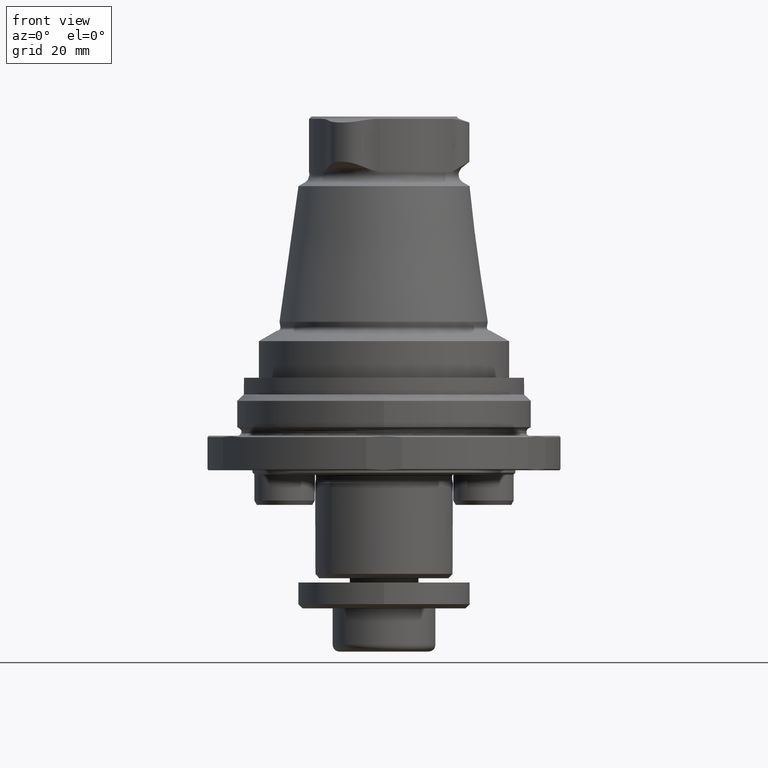
[diagram: clean part render]
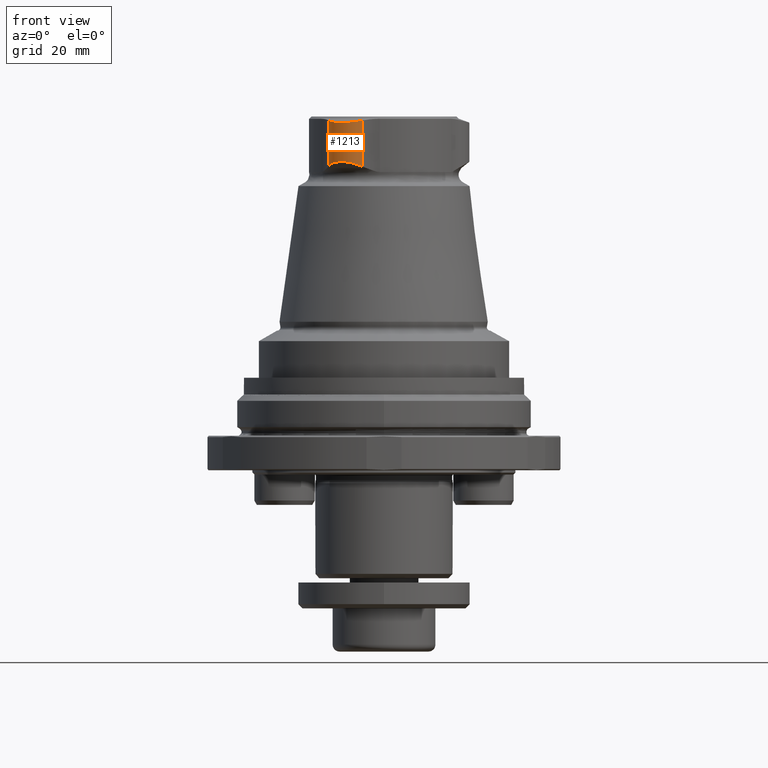
[diagram: same view with one face highlighted and labeled with its STEP entity id]
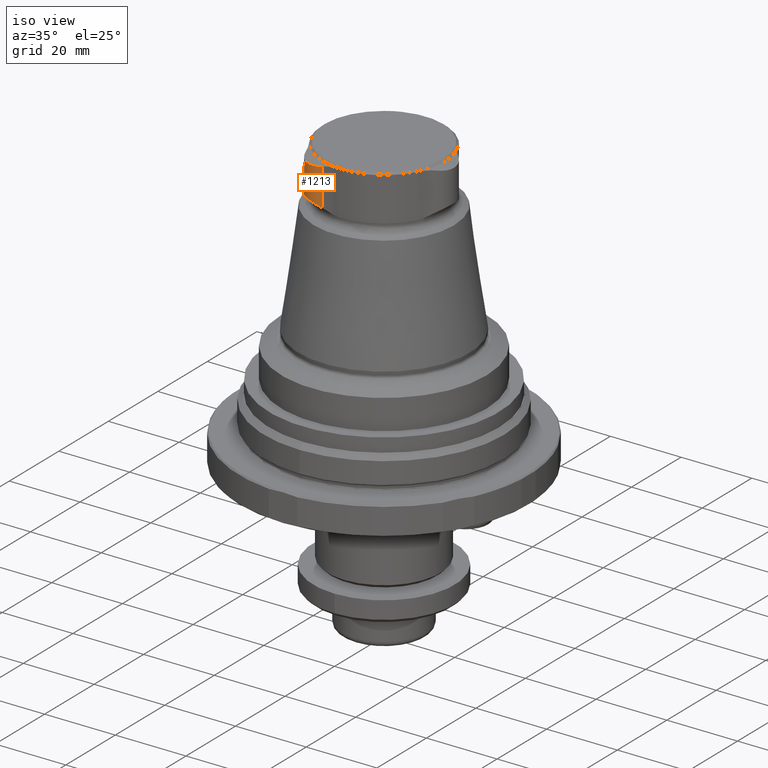
[diagram: same view with one face highlighted and labeled with its STEP entity id]
A machine part, front view. The second image highlights one B-rep face of the part: STEP entity #1213.
A second angle (iso view) of the same face is appended — the face is thin or edge-on in the first view.
In plain terms, the highlighted cylindrical surface (edge-blend (fillet) strip) has radius 6.35 mm, axis along (0, -0, 1).
Its self-contained STEP definition (entity closure, byte-faithful):
#68=LINE('',#2099,#104);
#69=LINE('',#2110,#105);
#104=VECTOR('',#1678,1000.);
#105=VECTOR('',#1679,1000.);
#141=B_SPLINE_CURVE_WITH_KNOTS('',3,(#2102,#2103,#2104,#2105,#2106,#2107,
#2108),.UNSPECIFIED.,.F.,.F.,(4,1,1,1,4),(2.0766815172345E-7,0.00249926787192999,
0.00499832807570825,0.00749738827948652,0.00999644848326478),
 .UNSPECIFIED.);
#142=B_SPLINE_CURVE_WITH_KNOTS('',3,(#2112,#2113,#2114,#2115,#2116,#2117,
#2118),.UNSPECIFIED.,.F.,.F.,(4,1,1,1,4),(2.22767095301831E-7,0.00256277673272078,
0.00512533069834625,0.00768788466397173,0.0102504386295972),
 .UNSPECIFIED.);
#185=CYLINDRICAL_SURFACE('',#1370,6.35);
#432=ORIENTED_EDGE('',*,*,#648,.T.);
#433=ORIENTED_EDGE('',*,*,#649,.F.);
#434=ORIENTED_EDGE('',*,*,#650,.F.);
#435=ORIENTED_EDGE('',*,*,#651,.F.);
#648=EDGE_CURVE('',#781,#782,#68,.T.);
#649=EDGE_CURVE('',#783,#782,#141,.T.);
#650=EDGE_CURVE('',#784,#783,#69,.T.);
#651=EDGE_CURVE('',#781,#784,#142,.T.);
#781=VERTEX_POINT('',#2100);
#782=VERTEX_POINT('',#2101);
#783=VERTEX_POINT('',#2109);
#784=VERTEX_POINT('',#2111);
#985=EDGE_LOOP('',(#432,#433,#434,#435));
#1110=FACE_BOUND('',#985,.T.);
#1213=ADVANCED_FACE('',(#1110),#185,.T.);
#1370=AXIS2_PLACEMENT_3D('',#2098,#1676,#1677);
#1676=DIRECTION('',(0.,-1.66533453693774E-16,1.));
#1677=DIRECTION('',(1.,0.,0.));
#1678=DIRECTION('',(0.,-1.66533453693774E-16,1.));
#1679=DIRECTION('',(0.,-1.66533453693774E-16,1.));
#2098=CARTESIAN_POINT('',(-6.72500000000001,-11.6480416809007,-46.0210065492642));
#2099=CARTESIAN_POINT('',(-5.07416735422223,-17.7797014542112,-46.0210065492642));
#2100=CARTESIAN_POINT('',(-5.07416735422223,-17.7797014542112,61.4315662257756));
#2101=CARTESIAN_POINT('',(-5.07416735422223,-17.7797014542112,72.0597450497322));
#2102=CARTESIAN_POINT('',(-12.8605894539389,-13.2842085589157,72.0597450497322));
#2103=CARTESIAN_POINT('',(-12.6466533599259,-14.0864641600289,71.9041145756941));
#2104=CARTESIAN_POINT('',(-11.9068940730349,-15.5972771575677,71.6659092088544));
#2105=CARTESIAN_POINT('',(-9.98587036310338,-17.2923747424392,71.5414607373422));
#2106=CARTESIAN_POINT('',(-7.56245300967274,-18.1096319581951,71.6650186118005));
#2107=CARTESIAN_POINT('',(-5.87598384084686,-17.995575276468,71.9041000735754));
#2108=CARTESIAN_POINT('',(-5.07416735422223,-17.7797014542112,72.0597450497322));
#2109=CARTESIAN_POINT('',(-12.8605894539389,-13.2842085589157,72.0597450497322));
#2110=CARTESIAN_POINT('',(-12.8605894539389,-13.2842085589157,-46.0210065492642));
#2111=CARTESIAN_POINT('',(-12.8605894539389,-13.2842085589157,61.4315662257756));
#2112=CARTESIAN_POINT('',(-5.07416735422223,-17.7797014542112,61.4315662257756));
#2113=CARTESIAN_POINT('',(-5.84105683491573,-17.9861718451391,61.7747609224325));
#2114=CARTESIAN_POINT('',(-7.49198443378949,-18.1205780304836,62.3270238801647));
#2115=CARTESIAN_POINT('',(-9.98408407937678,-17.3061129492863,62.6326113819731));
#2116=CARTESIAN_POINT('',(-11.9439393737817,-15.5547882261993,62.3293048699111));
#2117=CARTESIAN_POINT('',(-12.6558470104443,-14.0519881747721,61.7749392093064));
#2118=CARTESIAN_POINT('',(-12.8605894539389,-13.2842085589157,61.4315662257756));